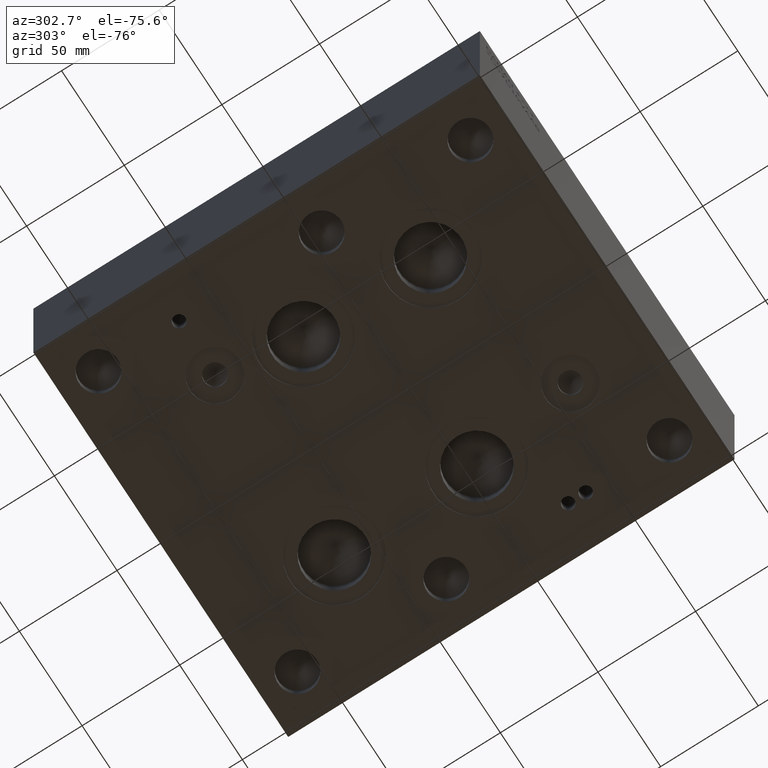
[diagram: clean part render]
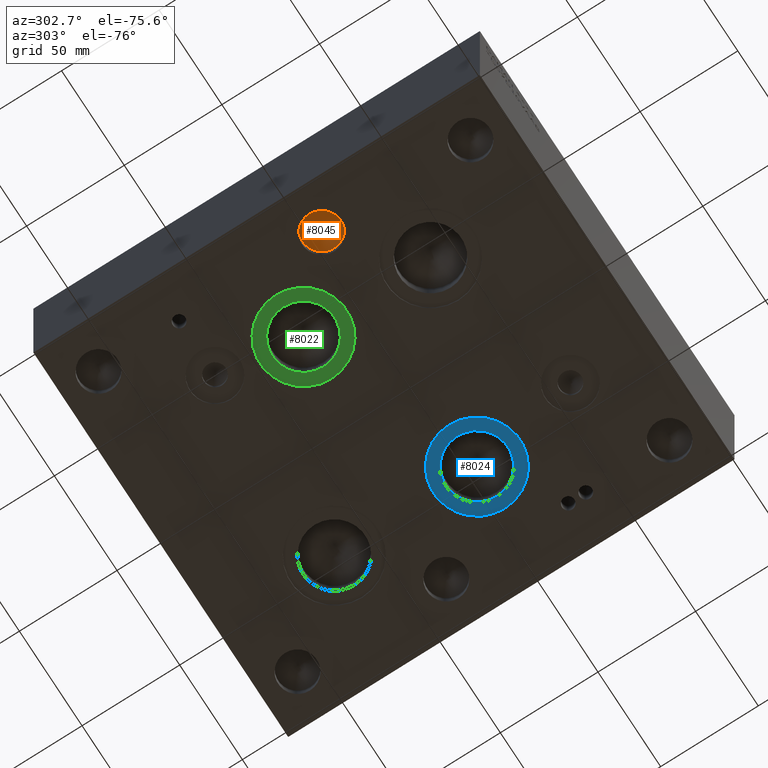
[diagram: same view with three faces highlighted in distinct colors, each labeled with its STEP entity id]
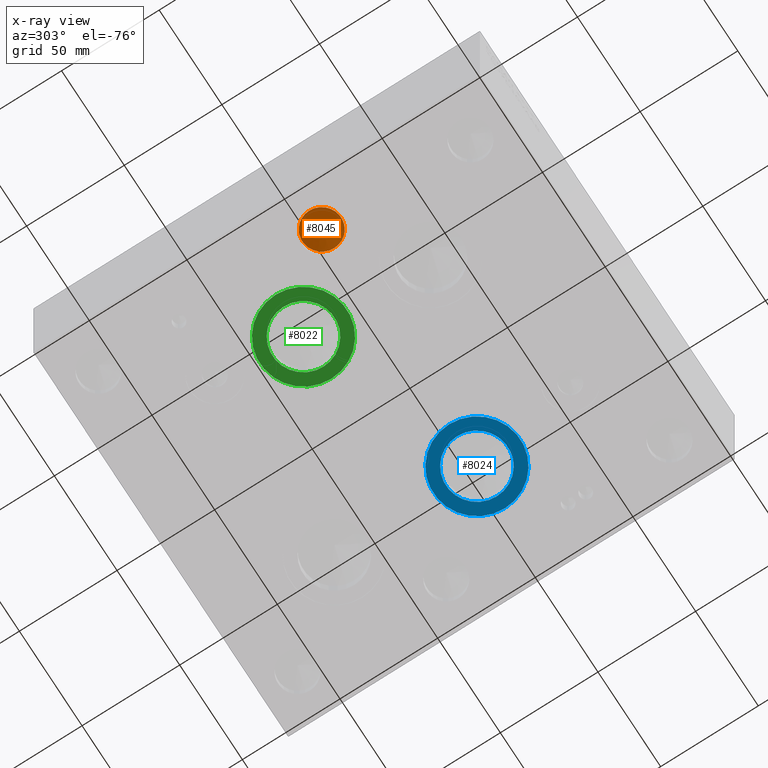
[diagram: x-ray of the same camera — body ghosted, the three highlighted faces saturated]
A machine part, auxiliary view with three faces highlighted in distinct colors.
The next image is the same camera in x-ray (body ghosted, the three faces saturated) — at least one of them is partly hidden behind the body in this view.
Their STEP definitions:

[orange] entity #8045 — the highlighted conical surface has half-angle 60 deg.
#141=CIRCLE('',#8484,9.9187);
#142=CIRCLE('',#8485,9.9187);
#275=CONICAL_SURFACE('',#8483,4.95935,1.0471975511966);
#909=FACE_OUTER_BOUND('',#1358,.T.);
#1358=EDGE_LOOP('',(#6752,#6753,#6754,#6755));
#2202=LINE('',#13277,#2989);
#2989=VECTOR('',#10110,4.95935);
#3685=VERTEX_POINT('',#13273);
#3686=VERTEX_POINT('',#13274);
#3687=VERTEX_POINT('',#13276);
#4755=EDGE_CURVE('',#3685,#3686,#141,.T.);
#4756=EDGE_CURVE('',#3686,#3687,#2202,.T.);
#4757=EDGE_CURVE('',#3686,#3685,#142,.T.);
#6752=ORIENTED_EDGE('',*,*,#4755,.T.);
#6753=ORIENTED_EDGE('',*,*,#4756,.T.);
#6754=ORIENTED_EDGE('',*,*,#4756,.F.);
#6755=ORIENTED_EDGE('',*,*,#4757,.T.);
#8045=ADVANCED_FACE('',(#909),#275,.F.);
#8483=AXIS2_PLACEMENT_3D('',#13272,#10106,#10107);
#8484=AXIS2_PLACEMENT_3D('',#13275,#10108,#10109);
#8485=AXIS2_PLACEMENT_3D('',#13278,#10111,#10112);
#10106=DIRECTION('center_axis',(0.,0.,-1.));
#10107=DIRECTION('ref_axis',(1.,0.,0.));
#10108=DIRECTION('center_axis',(0.,0.,-1.));
#10109=DIRECTION('ref_axis',(1.,0.,0.));
#10110=DIRECTION('',(0.866025403784439,-1.06057523872491E-16,0.5));
#10111=DIRECTION('center_axis',(0.,0.,-1.));
#10112=DIRECTION('ref_axis',(1.,0.,0.));
#13272=CARTESIAN_POINT('Origin',(22.225,95.25,8.58984205750557));
#13273=CARTESIAN_POINT('',(32.1437,95.25,5.72656));
#13274=CARTESIAN_POINT('',(12.3063,95.25,5.72656));
#13275=CARTESIAN_POINT('Origin',(22.225,95.25,5.72656));
#13276=CARTESIAN_POINT('',(22.225,95.25,11.4531241150111));
#13277=CARTESIAN_POINT('',(17.26565,95.25,8.58984205750557));
#13278=CARTESIAN_POINT('Origin',(22.225,95.25,5.72656));

[blue] entity #8024 — the highlighted planar face has unit normal (0, 0, -1).
#86=CIRCLE('',#8400,15.875);
#99=CIRCLE('',#8420,22.225);
#100=CIRCLE('',#8421,22.225);
#329=FACE_BOUND('',#1335,.T.);
#888=FACE_OUTER_BOUND('',#1334,.T.);
#1334=EDGE_LOOP('',(#6651,#6652));
#1335=EDGE_LOOP('',(#6653));
#3620=VERTEX_POINT('',#13099);
#3635=VERTEX_POINT('',#13140);
#3636=VERTEX_POINT('',#13142);
#4675=EDGE_CURVE('',#3620,#3620,#86,.T.);
#4695=EDGE_CURVE('',#3636,#3635,#99,.T.);
#4696=EDGE_CURVE('',#3635,#3636,#100,.T.);
#6651=ORIENTED_EDGE('',*,*,#4695,.T.);
#6652=ORIENTED_EDGE('',*,*,#4696,.T.);
#6653=ORIENTED_EDGE('',*,*,#4675,.T.);
#7392=PLANE('',#8422);
#8024=ADVANCED_FACE('',(#888,#329),#7392,.T.);
#8400=AXIS2_PLACEMENT_3D('',#13100,#9915,#9916);
#8420=AXIS2_PLACEMENT_3D('',#13143,#9962,#9963);
#8421=AXIS2_PLACEMENT_3D('',#13144,#9964,#9965);
#8422=AXIS2_PLACEMENT_3D('',#13145,#9966,#9967);
#9915=DIRECTION('center_axis',(0.,0.,1.));
#9916=DIRECTION('ref_axis',(1.,0.,0.));
#9962=DIRECTION('center_axis',(0.,0.,-1.));
#9963=DIRECTION('ref_axis',(1.,0.,0.));
#9964=DIRECTION('center_axis',(0.,0.,-1.));
#9965=DIRECTION('ref_axis',(1.,0.,0.));
#9966=DIRECTION('center_axis',(0.,0.,-1.));
#9967=DIRECTION('ref_axis',(1.,0.,0.));
#13099=CARTESIAN_POINT('',(130.175,95.25,1.016));
#13100=CARTESIAN_POINT('Origin',(146.05,95.25,1.016));
#13140=CARTESIAN_POINT('',(123.825,95.25,1.016));
#13142=CARTESIAN_POINT('',(168.275,95.25,1.016));
#13143=CARTESIAN_POINT('Origin',(146.05,95.25,1.016));
#13144=CARTESIAN_POINT('Origin',(146.05,95.25,1.016));
#13145=CARTESIAN_POINT('Origin',(146.05,95.25,1.016));

[green] entity #8022 — the highlighted planar face has unit normal (0, 0, -1).
#83=CIRCLE('',#8395,15.875);
#95=CIRCLE('',#8414,22.225);
#96=CIRCLE('',#8415,22.225);
#328=FACE_BOUND('',#1332,.T.);
#886=FACE_OUTER_BOUND('',#1331,.T.);
#1331=EDGE_LOOP('',(#6642,#6643));
#1332=EDGE_LOOP('',(#6644));
#3616=VERTEX_POINT('',#13088);
#3631=VERTEX_POINT('',#13129);
#3632=VERTEX_POINT('',#13131);
#4670=EDGE_CURVE('',#3616,#3616,#83,.T.);
#4690=EDGE_CURVE('',#3632,#3631,#95,.T.);
#4691=EDGE_CURVE('',#3631,#3632,#96,.T.);
#6642=ORIENTED_EDGE('',*,*,#4690,.T.);
#6643=ORIENTED_EDGE('',*,*,#4691,.T.);
#6644=ORIENTED_EDGE('',*,*,#4670,.T.);
#7391=PLANE('',#8416);
#8022=ADVANCED_FACE('',(#886,#328),#7391,.T.);
#8395=AXIS2_PLACEMENT_3D('',#13089,#9903,#9904);
#8414=AXIS2_PLACEMENT_3D('',#13132,#9949,#9950);
#8415=AXIS2_PLACEMENT_3D('',#13133,#9951,#9952);
#8416=AXIS2_PLACEMENT_3D('',#13134,#9953,#9954);
#9903=DIRECTION('center_axis',(0.,0.,1.));
#9904=DIRECTION('ref_axis',(1.,0.,0.));
#9949=DIRECTION('center_axis',(0.,0.,-1.));
#9950=DIRECTION('ref_axis',(1.,0.,0.));
#9951=DIRECTION('center_axis',(0.,0.,-1.));
#9952=DIRECTION('ref_axis',(1.,0.,0.));
#9953=DIRECTION('center_axis',(0.,0.,-1.));
#9954=DIRECTION('ref_axis',(1.,0.,0.));
#13088=CARTESIAN_POINT('',(41.275,127.,1.016));
#13089=CARTESIAN_POINT('Origin',(57.15,127.,1.016));
#13129=CARTESIAN_POINT('',(34.925,127.,1.016));
#13131=CARTESIAN_POINT('',(79.375,127.,1.016));
#13132=CARTESIAN_POINT('Origin',(57.15,127.,1.016));
#13133=CARTESIAN_POINT('Origin',(57.15,127.,1.016));
#13134=CARTESIAN_POINT('Origin',(57.15,127.,1.016));